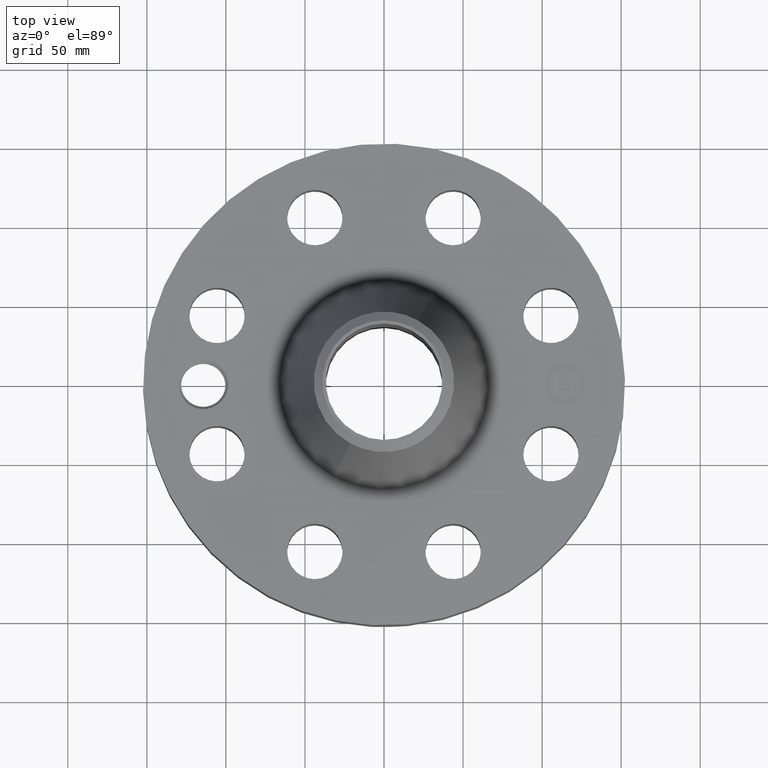
[diagram: clean part render]
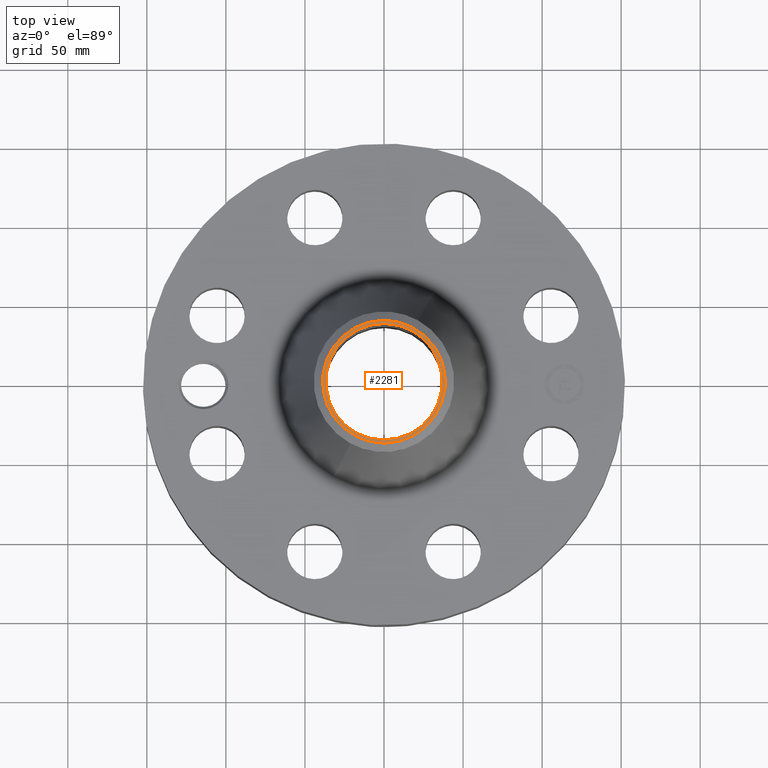
[diagram: same view with one face highlighted and labeled with its STEP entity id]
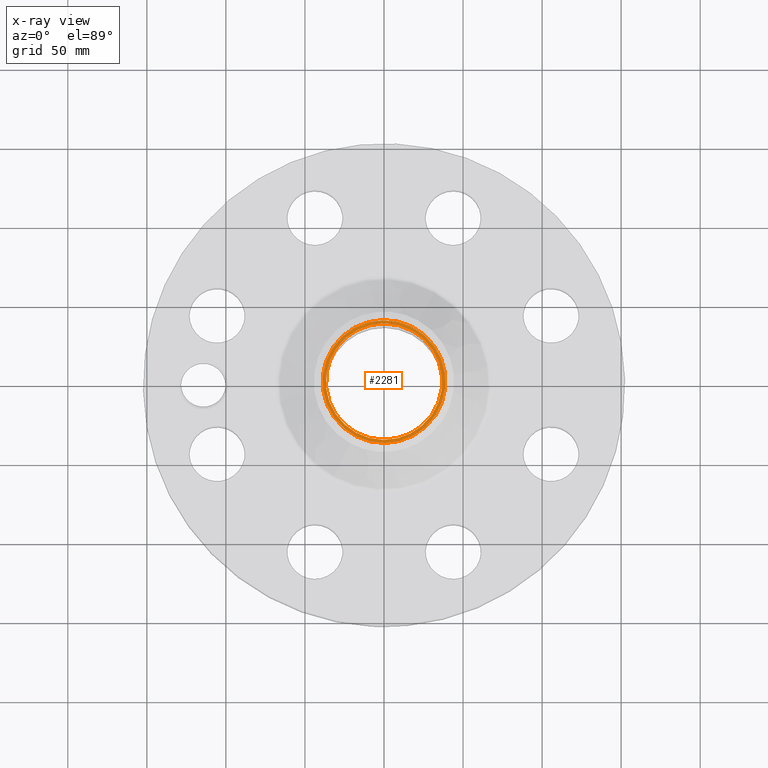
[diagram: x-ray of the same camera — body ghosted, the highlighted face saturated]
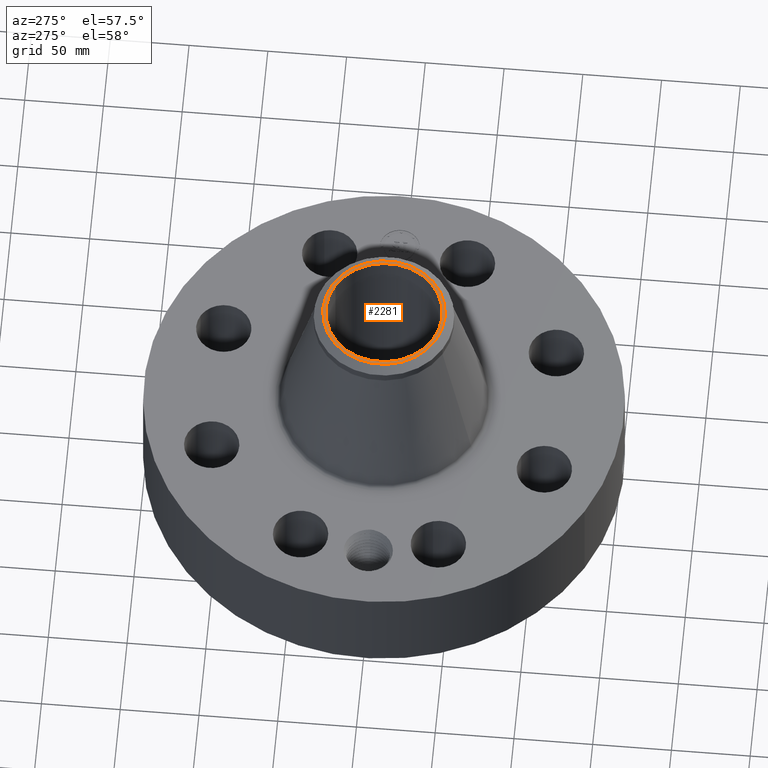
[diagram: same view with one face highlighted and labeled with its STEP entity id]
A machine part, top view. The second image highlights one B-rep face of the part: STEP entity #2281.
The next image is the same camera in x-ray: the body ghosted, the highlighted face saturated — about 0% of this face is hidden behind the body in this view.
A second angle (auxiliary view) of the same face is appended — the face is thin or edge-on in the first view.
In plain terms, the highlighted planar face has unit normal (0, 0, -1).
Its self-contained STEP definition (entity closure, byte-faithful):
#1156=AXIS2_PLACEMENT_3D('Circle Axis2P3D',#1154,#1155,$) ;
#1224=AXIS2_PLACEMENT_3D('Circle Axis2P3D',#1222,#1223,$) ;
#2257=AXIS2_PLACEMENT_3D('Plane Axis2P3D',#2254,#2255,#2256) ;
#2261=AXIS2_PLACEMENT_3D('Circle Axis2P3D',#2259,#2260,$) ;
#2270=AXIS2_PLACEMENT_3D('Circle Axis2P3D',#2268,#2269,$) ;
#1154=CARTESIAN_POINT('Axis2P3D Location',(0.,0.,6.87000000003)) ;
#1158=CARTESIAN_POINT('Vertex',(0.695167030979,1.27249471475,6.87000000003)) ;
#1160=CARTESIAN_POINT('Vertex',(-0.695167030979,-1.27249471475,6.87000000003)) ;
#1222=CARTESIAN_POINT('Axis2P3D Location',(0.,0.,6.87000000003)) ;
#2254=CARTESIAN_POINT('Axis2P3D Location',(0.,1.75000000001,6.87000000003)) ;
#2259=CARTESIAN_POINT('Axis2P3D Location',(0.,0.,6.87000000003)) ;
#2263=CARTESIAN_POINT('Vertex',(0.732917073389,-1.34159570387,6.87000000003)) ;
#2265=CARTESIAN_POINT('Vertex',(-0.732917073389,1.34159570387,6.87000000003)) ;
#2268=CARTESIAN_POINT('Axis2P3D Location',(0.,0.,6.87000000003)) ;
#1155=DIRECTION('Axis2P3D Direction',(0.,0.,-0.0393700787402)) ;
#1223=DIRECTION('Axis2P3D Direction',(0.,0.,-0.0393700787402)) ;
#2255=DIRECTION('Axis2P3D Direction',(0.,0.,-0.0393700787402)) ;
#2256=DIRECTION('Axis2P3D XDirection',(0.0393700787402,0.,0.)) ;
#2260=DIRECTION('Axis2P3D Direction',(0.,0.,-0.0393700787402)) ;
#2269=DIRECTION('Axis2P3D Direction',(0.,0.,-0.0393700787402)) ;
#2274=ORIENTED_EDGE('',*,*,#2267,.T.) ;
#2275=ORIENTED_EDGE('',*,*,#2272,.T.) ;
#2278=ORIENTED_EDGE('',*,*,#1226,.T.) ;
#2279=ORIENTED_EDGE('',*,*,#1162,.T.) ;
#2280=FACE_BOUND('',#2277,.T.) ;
#2281=ADVANCED_FACE('PartBody',(#2276,#2280),#2258,.F.) ;
#1157=CIRCLE('generated circle',#1156,1.45000000001) ;
#1225=CIRCLE('generated circle',#1224,1.45000000001) ;
#2262=CIRCLE('generated circle',#2261,1.52874015749) ;
#2271=CIRCLE('generated circle',#2270,1.52874015749) ;
#1162=EDGE_CURVE('',#1159,#1161,#1157,.T.) ;
#1226=EDGE_CURVE('',#1161,#1159,#1225,.T.) ;
#2267=EDGE_CURVE('',#2264,#2266,#2262,.F.) ;
#2272=EDGE_CURVE('',#2266,#2264,#2271,.F.) ;
#2273=EDGE_LOOP('',(#2274,#2275)) ;
#2277=EDGE_LOOP('',(#2278,#2279)) ;
#2276=FACE_OUTER_BOUND('',#2273,.T.) ;
#2258=PLANE('',#2257) ;
#1159=VERTEX_POINT('',#1158) ;
#1161=VERTEX_POINT('',#1160) ;
#2264=VERTEX_POINT('',#2263) ;
#2266=VERTEX_POINT('',#2265) ;